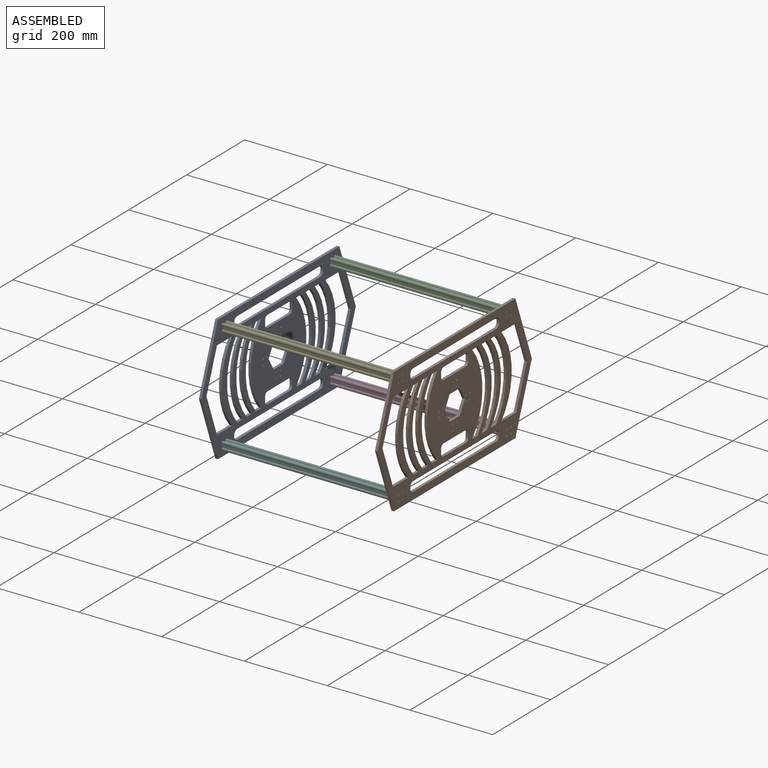
[diagram: assembled view]
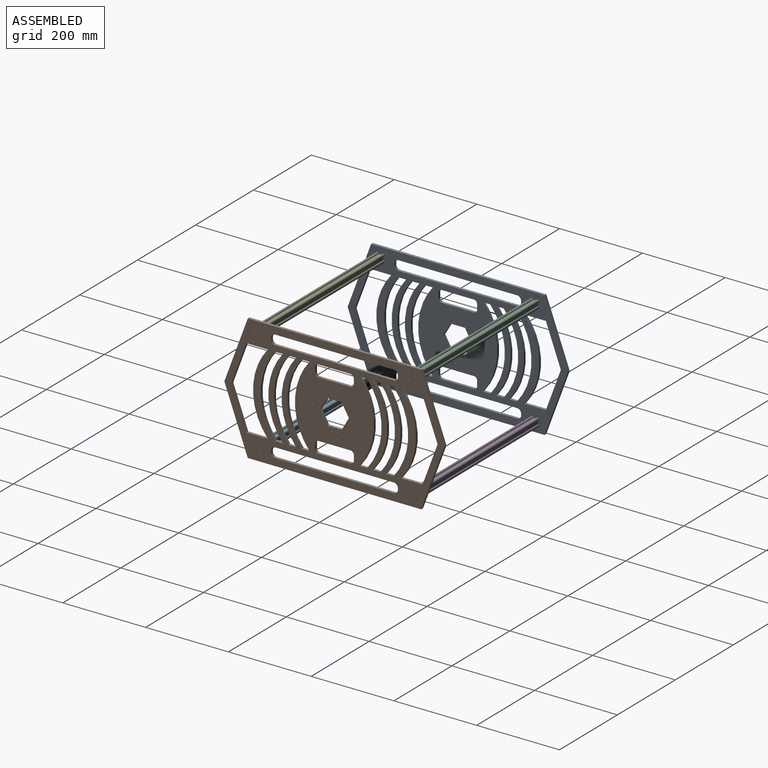
[diagram: assembled view, second angle]
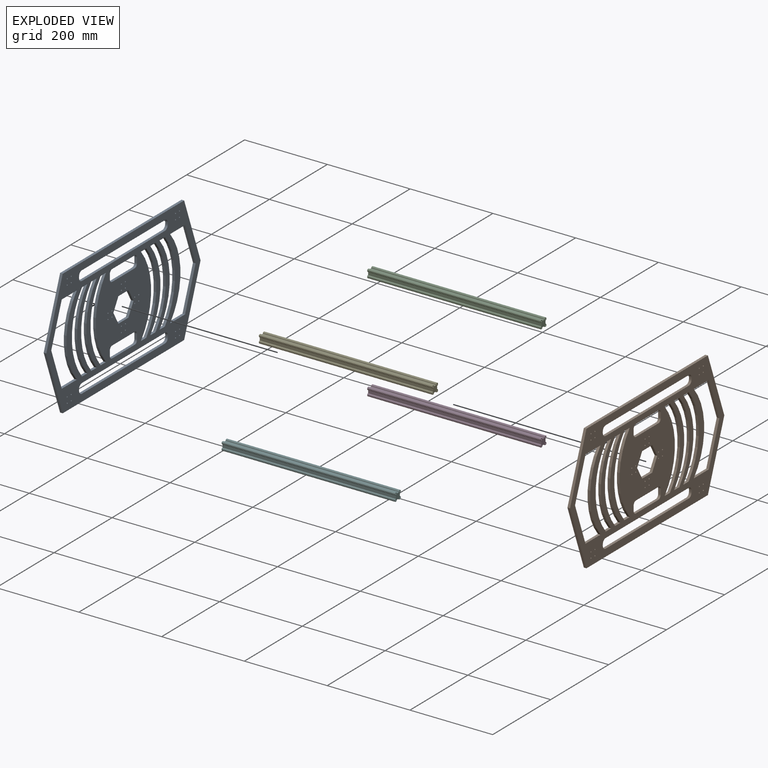
[diagram: exploded view]
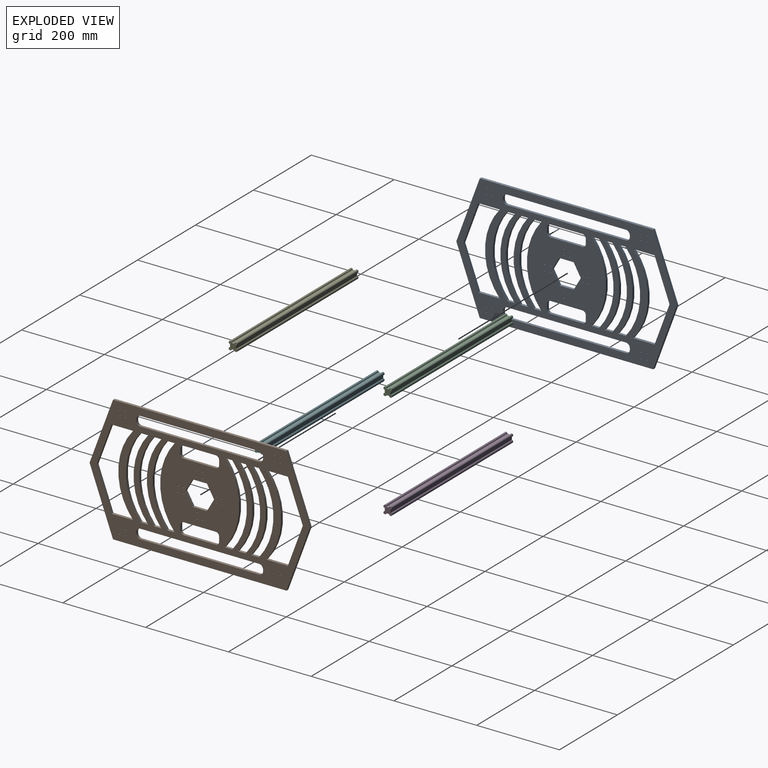
[diagram: exploded view, second angle]
ASSEMBLY  parts=6 mates=5
PART A: 112 faces, bbox 532.3x304.8x6.4 mm
  f0: plane 419.1x6.35mm, normal (0,1,0), area 2661.3mm2, adj f1,f109,f110,f111
  f1: plane 152.4x56.62mm, normal (-0.94,0.35,0), area 1032.4mm2, adj f0,f2,f110,f111
  f2: plane 152.4x56.62mm, normal (-0.94,-0.35,0), area 1032.4mm2, adj f1,f3,f110,f111
  f3: plane 419.1x6.35mm, normal (0,-1,0), area 2661.3mm2, adj f2,f4,f110,f111
  f4: plane 152.4x56.62mm, normal (0.94,-0.35,0), area 1032.4mm2, adj f3,f109,f110,f111
  f5: plane 97.48x36.22mm, normal (0.94,-0.35,0), area 660.3mm2, adj f6,f64,f110,f111
  f6: plane 51.87x6.35mm, normal (0,-1,0), area 329.4mm2, adj f5,f7,f110,f111
  f7: cylinder r=150.67mm len=194.96mm, axis (0,0,-1), area 1346.4mm2, adj f6,f8,f110,f111
  f8: plane 51.87x6.35mm, normal (0,1,0), area 329.4mm2, adj f7,f64,f110,f111
  f9: cylinder r=153.02mm len=194.96mm, axis (0,0,-1), area 1342.2mm2, adj f10,f65,f110,f111
  f10: plane 18.28x6.35mm, normal (0,-1,0), area 116.1mm2, adj f9,f11,f110,f111
  f11: cylinder r=153.02mm len=194.96mm, axis (0,0,-1), area 1342.2mm2, adj f10,f65,f110,f111
  f12: plane 18.28x6.35mm, normal (0,-1,0), area 116.1mm2, adj f13,f66,f110,f111
  f13: cylinder r=153.02mm len=194.96mm, axis (0,0,-1), area 1342.2mm2, adj f12,f14,f110,f111
  f14: plane 18.28x6.35mm, normal (0,1,0), area 116.1mm2, adj f13,f66,f110,f111
  f15: cylinder r=9.9mm len=9.9mm, axis (0,0,-1), area 98.7mm2, adj f16,f67,f110,f111
  f16: plane 286.54x6.35mm, normal (0,-1,0), area 1819.5mm2, adj f15,f17,f110,f111
  f17: cylinder r=9.9mm len=9.9mm, axis (0,0,-1), area 98.7mm2, adj f16,f18,f110,f111
  f18: plane 6.35x3.51mm, normal (-1,0,0), area 22.3mm2, adj f17,f19,f110,f111
  f19: cylinder r=9.9mm len=9.9mm, axis (0,0,-1), area 98.7mm2, adj f18,f20,f110,f111
  f20: plane 286.54x6.35mm, normal (0,1,0), area 1819.5mm2, adj f19,f21,f110,f111
  f21: cylinder r=9.9mm len=9.9mm, axis (0,0,-1), area 98.7mm2, adj f20,f67,f110,f111
  f22: plane 34.76x6.35mm, normal (0,-1,0), area 220.7mm2, adj f23,f68,f110,f111
  f23: plane 30.1x17.38mm, normal (-0.87,-0.5,0), area 220.7mm2, adj f22,f24,f110,f111
  f24: plane 30.1x17.38mm, normal (-0.87,0.5,0), area 220.7mm2, adj f23,f25,f110,f111
  f25: plane 34.76x6.35mm, normal (0,1,0), area 220.7mm2, adj f24,f26,f110,f111
  f26: plane 30.1x17.38mm, normal (0.87,0.5,0), area 220.7mm2, adj f25,f68,f110,f111
  f27: cylinder r=153.02mm len=194.96mm, axis (0,0,-1), area 1342.2mm2, adj f28,f69,f110,f111
  f28: plane 18.28x6.35mm, normal (0,-1,0), area 116.1mm2, adj f27,f29,f110,f111
  f29: cylinder r=153.02mm len=194.96mm, axis (0,0,-1), area 1342.2mm2, adj f28,f69,f110,f111
  f30: cylinder r=153.02mm len=194.96mm, axis (0,0,-1), area 1342.2mm2, adj f31,f70,f110,f111
  f31: plane 18.28x6.35mm, normal (0,-1,0), area 116.1mm2, adj f30,f32,f110,f111
  f32: cylinder r=153.02mm len=194.96mm, axis (0,0,-1), area 1342.2mm2, adj f31,f70,f110,f111
  f33: plane 18.28x6.35mm, normal (0,-1,0), area 116.1mm2, adj f34,f71,f110,f111
  f34: cylinder r=153.02mm len=194.96mm, axis (0,0,-1), area 1342.2mm2, adj f33,f35,f110,f111
  f35: plane 18.28x6.35mm, normal (0,1,0), area 116.1mm2, adj f34,f71,f110,f111
  f36: cylinder r=8.08mm len=8.08mm, axis (0,0,-1), area 80.6mm2, adj f37,f72,f110,f111
  f37: plane 12.02x6.35mm, normal (1,0,0), area 76.3mm2, adj f36,f38,f110,f111
  f38: cylinder r=8.08mm len=8.08mm, axis (0,0,-1), area 80.6mm2, adj f37,f39,f110,f111
  f39: plane 77.38x6.35mm, normal (0,-1,0), area 491.3mm2, adj f38,f40,f110,f111
  f40: cylinder r=8.08mm len=8.08mm, axis (0,0,-1), area 80.6mm2, adj f39,f41,f110,f111
  f41: plane 12.02x6.35mm, normal (-1,0,0), area 76.3mm2, adj f40,f42,f110,f111
  f42: cylinder r=8.08mm len=8.08mm, axis (0,0,-1), area 80.6mm2, adj f41,f72,f110,f111
  f43: cylinder r=8.08mm len=8.08mm, axis (0,0,-1), area 80.6mm2, adj f44,f73,f110,f111
  f44: plane 77.38x6.35mm, normal (0,-1,0), area 491.3mm2, adj f43,f45,f110,f111
  f45: cylinder r=8.08mm len=8.08mm, axis (0,0,-1), area 80.6mm2, adj f44,f46,f110,f111
  f46: plane 12.02x6.35mm, normal (-1,0,0), area 76.3mm2, adj f45,f47,f110,f111
  f47: cylinder r=8.08mm len=8.08mm, axis (0,0,-1), area 80.6mm2, adj f46,f48,f110,f111
  f48: plane 77.38x6.35mm, normal (0,1,0), area 491.3mm2, adj f47,f49,f110,f111
  f49: cylinder r=8.08mm len=8.08mm, axis (0,0,-1), area 80.6mm2, adj f48,f73,f110,f111
  f50: cylinder r=153.02mm len=194.96mm, axis (0,0,-1), area 1342.2mm2, adj f51,f94,f110,f111
  f51: plane 18.28x6.35mm, normal (0,1,0), area 116.1mm2, adj f50,f52,f110,f111
  f52: cylinder r=153.02mm len=194.96mm, axis (0,0,-1), area 1342.2mm2, adj f51,f94,f110,f111
  f53: cylinder r=9.9mm len=9.9mm, axis (0,0,-1), area 98.7mm2, adj f54,f95,f110,f111
  f54: plane 286.54x6.35mm, normal (0,1,0), area 1819.5mm2, adj f53,f55,f110,f111
  f55: cylinder r=9.9mm len=9.9mm, axis (0,0,-1), area 98.7mm2, adj f54,f56,f110,f111
  f56: plane 6.35x3.51mm, normal (1,0,0), area 22.3mm2, adj f55,f57,f110,f111
  f57: cylinder r=9.9mm len=9.9mm, axis (0,0,-1), area 98.7mm2, adj f56,f58,f110,f111
  f58: plane 286.54x6.35mm, normal (0,-1,0), area 1819.5mm2, adj f57,f59,f110,f111
  f59: cylinder r=9.9mm len=9.9mm, axis (0,0,-1), area 98.7mm2, adj f58,f95,f110,f111
  f60: plane 51.87x6.35mm, normal (0,-1,0), area 329.4mm2, adj f61,f96,f110,f111
  f61: plane 97.48x36.22mm, normal (-0.94,-0.35,0), area 660.3mm2, adj f60,f62,f110,f111
  f62: plane 97.48x36.22mm, normal (-0.94,0.35,0), area 660.3mm2, adj f61,f63,f110,f111
  f63: plane 51.87x6.35mm, normal (0,1,0), area 329.4mm2, adj f62,f96,f110,f111
  f64: plane 97.48x36.22mm, normal (0.94,0.35,0), area 660.3mm2, adj f5,f8,f110,f111
  f65: plane 18.28x6.35mm, normal (0,1,0), area 116.1mm2, adj f9,f11,f110,f111
  f66: cylinder r=153.02mm len=194.96mm, axis (0,0,-1), area 1342.2mm2, adj f12,f14,f110,f111
  f67: plane 6.35x3.51mm, normal (1,0,0), area 22.3mm2, adj f15,f21,f110,f111
  f68: plane 30.1x17.38mm, normal (0.87,-0.5,0), area 220.7mm2, adj f22,f26,f110,f111
  f69: plane 18.28x6.35mm, normal (0,1,0), area 116.1mm2, adj f27,f29,f110,f111
  f70: plane 18.28x6.35mm, normal (0,1,0), area 116.1mm2, adj f30,f32,f110,f111
  f71: cylinder r=153.02mm len=194.96mm, axis (0,0,-1), area 1342.2mm2, adj f33,f35,f110,f111
  f72: plane 77.38x6.35mm, normal (0,1,0), area 491.3mm2, adj f36,f42,f110,f111
  f73: plane 12.02x6.35mm, normal (1,0,0), area 76.3mm2, adj f43,f49,f110,f111
  f74: cylinder r=1.5mm len=6.35mm, axis (0,0,-1), area 59.8mm2, adj f110,f111
  f75: cylinder r=1.5mm len=6.35mm, axis (0,0,-1), area 59.8mm2, adj f110,f111
  f76: cylinder r=1.5mm len=6.35mm, axis (0,0,-1), area 59.8mm2, adj f110,f111
  f77: cylinder r=1.5mm len=6.35mm, axis (0,0,-1), area 59.8mm2, adj f110,f111
  f78: cylinder r=1.5mm len=6.35mm, axis (0,0,-1), area 59.8mm2, adj f110,f111
  f79: cylinder r=1.5mm len=6.35mm, axis (0,0,-1), area 59.8mm2, adj f110,f111
  f80: cylinder r=1.5mm len=6.35mm, axis (0,0,-1), area 59.8mm2, adj f110,f111
  f81: cylinder r=1.5mm len=6.35mm, axis (0,0,-1), area 59.8mm2, adj f110,f111
  f82: cylinder r=1.5mm len=6.35mm, axis (0,0,-1), area 59.8mm2, adj f110,f111
  f83: cylinder r=1.5mm len=6.35mm, axis (0,0,-1), area 59.8mm2, adj f110,f111
  f84: cylinder r=1.5mm len=6.35mm, axis (0,0,-1), area 59.8mm2, adj f110,f111
  f85: cylinder r=1.5mm len=6.35mm, axis (0,0,-1), area 59.8mm2, adj f110,f111
  f86: cylinder r=1.5mm len=6.35mm, axis (0,0,-1), area 59.8mm2, adj f110,f111
  f87: cylinder r=1.5mm len=6.35mm, axis (0,0,-1), area 59.8mm2, adj f110,f111
  f88: cylinder r=1.5mm len=6.35mm, axis (0,0,-1), area 59.8mm2, adj f110,f111
  f89: cylinder r=1.5mm len=6.35mm, axis (0,0,-1), area 59.8mm2, adj f110,f111
  f90: cylinder r=1.5mm len=6.35mm, axis (0,0,-1), area 59.8mm2, adj f110,f111
  f91: cylinder r=1.5mm len=6.35mm, axis (0,0,-1), area 59.8mm2, adj f110,f111
  f92: cylinder r=1.5mm len=6.35mm, axis (0,0,-1), area 59.8mm2, adj f110,f111
  f93: cylinder r=1.5mm len=6.35mm, axis (0,0,-1), area 59.8mm2, adj f110,f111
  f94: plane 18.28x6.35mm, normal (0,-1,0), area 116.1mm2, adj f50,f52,f110,f111
  f95: plane 6.35x3.51mm, normal (-1,0,0), area 22.3mm2, adj f53,f59,f110,f111
  f96: cylinder r=150.67mm len=194.96mm, axis (0,0,-1), area 1346.4mm2, adj f60,f63,f110,f111
  f97: cylinder r=1.5mm len=6.35mm, axis (0,0,-1), area 59.8mm2, adj f110,f111
  f98: cylinder r=1.5mm len=6.35mm, axis (0,0,-1), area 59.8mm2, adj f110,f111
  f99: cylinder r=1.5mm len=6.35mm, axis (0,0,-1), area 59.8mm2, adj f110,f111
  f100: cylinder r=1.5mm len=6.35mm, axis (0,0,-1), area 59.8mm2, adj f110,f111
  f101: cylinder r=1.5mm len=6.35mm, axis (0,0,-1), area 59.8mm2, adj f110,f111
  f102: cylinder r=1.5mm len=6.35mm, axis (0,0,-1), area 59.8mm2, adj f110,f111
  f103: cylinder r=1.5mm len=6.35mm, axis (0,0,-1), area 59.8mm2, adj f110,f111
  f104: cylinder r=1.5mm len=6.35mm, axis (0,0,-1), area 59.8mm2, adj f110,f111
  f105: cylinder r=1.5mm len=6.35mm, axis (0,0,-1), area 59.8mm2, adj f110,f111
  f106: cylinder r=1.5mm len=6.35mm, axis (0,0,-1), area 59.8mm2, adj f110,f111
  f107: cylinder r=1.5mm len=6.35mm, axis (0,0,-1), area 59.8mm2, adj f110,f111
  f108: cylinder r=1.5mm len=6.35mm, axis (0,0,-1), area 59.8mm2, adj f110,f111
  f109: plane 152.4x56.62mm, normal (0.94,0.35,0), area 1032.4mm2, adj f0,f4,f110,f111
  f110: plane 532.34x304.8mm, normal (0,0,1), area 83239.9mm2, adj f0,f1,f2,f3,f4,f5,f6,f7
  f111: plane 532.34x304.8mm, normal (0,0,-1), area 83239.9mm2, adj f0,f1,f2,f3,f4,f5,f6,f7
PART B: same geometry as A
PART C: 38 faces, bbox 19.8x19.8x419.1 mm
  f0: plane 419.1x1.52mm, normal (0,-1,0), area 635.2mm2, adj f1,f24,f25,f30
  f1: plane 419.1x7.77mm, normal (-1,0,0), area 3255.8mm2, adj f0,f2,f24,f25
  f2: plane 419.1x1.52mm, normal (0,1,0), area 635.2mm2, adj f1,f24,f25,f29
  f3: plane 419.1x3.03mm, normal (-1,0,0), area 1270.5mm2, adj f24,f25,f29,f35
  f4: plane 419.1x3.03mm, normal (0,-1,0), area 1270.5mm2, adj f24,f25,f28,f35
  f5: plane 419.1x1.52mm, normal (1,0,0), area 635.2mm2, adj f6,f24,f25,f28
  f6: plane 419.1x7.77mm, normal (0,-1,0), area 3255.8mm2, adj f5,f7,f24,f25
  f7: plane 419.1x1.52mm, normal (-1,0,0), area 635.2mm2, adj f6,f24,f25,f26
  f8: plane 419.1x3.03mm, normal (0,-1,0), area 1270.5mm2, adj f24,f25,f26,f36
  f9: plane 419.1x3.03mm, normal (1,0,0), area 1270.5mm2, adj f24,f25,f27,f36
  f10: plane 419.1x1.52mm, normal (0,1,0), area 635.2mm2, adj f11,f24,f25,f27
  f11: plane 419.1x7.77mm, normal (1,0,0), area 3255.8mm2, adj f10,f12,f24,f25
  f12: plane 419.1x1.52mm, normal (0,-1,0), area 635.2mm2, adj f11,f24,f25,f33
  f13: plane 419.1x3.03mm, normal (1,0,0), area 1270.5mm2, adj f24,f25,f33,f37
  f14: plane 419.1x3.03mm, normal (0,1,0), area 1270.5mm2, adj f24,f25,f32,f37
  f15: plane 419.1x1.52mm, normal (-1,0,0), area 635.2mm2, adj f16,f24,f25,f32
  f16: plane 419.1x7.77mm, normal (0,1,0), area 3255.8mm2, adj f15,f17,f24,f25
  f17: plane 419.1x1.52mm, normal (1,0,0), area 635.2mm2, adj f16,f24,f25,f31
  f18: plane 419.1x3.03mm, normal (0,1,0), area 1270.5mm2, adj f24,f25,f31,f34
  f19: cylinder r=1.5mm len=419.1mm, axis (0,0,-1), area 3949.9mm2, adj f24,f25
  f20: cylinder r=1.5mm len=419.1mm, axis (0,0,-1), area 3949.9mm2, adj f24,f25
  f21: cylinder r=1.5mm len=419.1mm, axis (0,0,-1), area 3949.9mm2, adj f24,f25
  f22: plane 419.1x3.03mm, normal (-1,0,0), area 1270.5mm2, adj f24,f25,f30,f34
  f23: cylinder r=1.5mm len=419.1mm, axis (0,0,-1), area 3949.9mm2, adj f24,f25
  f24: plane 19.83x19.83mm, normal (0,0,1), area 257.8mm2, adj f0,f1,f2,f3,f4,f5,f6,f7
  f25: plane 19.83x19.83mm, normal (0,0,-1), area 257.8mm2, adj f0,f1,f2,f3,f4,f5,f6,f7
  f26: plane 419.1x1.5mm, normal (-0.71,-0.71,0), area 889mm2, adj f7,f8,f24,f25
  f27: plane 419.1x1.5mm, normal (0.71,0.71,0), area 889mm2, adj f9,f10,f24,f25
  f28: plane 419.1x1.5mm, normal (0.71,-0.71,0), area 889mm2, adj f4,f5,f24,f25
  f29: plane 419.1x1.5mm, normal (-0.71,0.71,0), area 889mm2, adj f2,f3,f24,f25
  f30: plane 419.1x1.5mm, normal (-0.71,-0.71,0), area 889mm2, adj f0,f22,f24,f25
  f31: plane 419.1x1.5mm, normal (0.71,0.71,0), area 889mm2, adj f17,f18,f24,f25
  f32: plane 419.1x1.5mm, normal (-0.71,0.71,0), area 889mm2, adj f14,f15,f24,f25
  f33: plane 419.1x1.5mm, normal (0.71,-0.71,0), area 889mm2, adj f12,f13,f24,f25
  f34: plane 419.1x1.5mm, normal (-0.71,0.71,0), area 889mm2, adj f18,f22,f24,f25
  f35: plane 419.1x1.5mm, normal (-0.71,-0.71,0), area 889mm2, adj f3,f4,f24,f25
  f36: plane 419.1x1.5mm, normal (0.71,-0.71,0), area 889mm2, adj f8,f9,f24,f25
  f37: plane 419.1x1.5mm, normal (0.71,0.71,0), area 889mm2, adj f13,f14,f24,f25
PART D: same geometry as C
PART E: same geometry as C
PART F: same geometry as C
PLACE A rot(axis=(0.58,0.58,0.58),120deg) t=(-177.66,-65.82,-85.01)mm
PLACE B rot(axis=(0.58,0.58,0.58),120deg) t=(247.79,-65.82,-85.01)mm
PLACE C rot(axis=(0.58,0.58,0.58),120deg) t=(-171.31,114.19,37.12)mm
PLACE D rot(axis=(0.58,0.58,0.58),120deg) t=(-171.31,114.19,-220.94)mm
PLACE E rot(axis=(0.58,0.58,0.58),120deg) t=(-171.31,-259.63,37.12)mm
PLACE F rot(axis=(0.58,0.58,0.58),120deg) t=(-171.31,-259.63,-220.94)mm
MATE fastened B.f76 <-> E.f21  axis (-1,0,0) through (247.79,-259.63,50.92)mm
MATE fastened D.f21 <-> A.f80  axis (-1,0,0) through (-171.31,114.19,-207.14)mm
MATE fastened F.f19 <-> A.f91  axis (-1,0,0) through (-171.31,-245.83,-207.14)mm
MATE fastened E.f21 <-> A.f76  axis (-1,0,0) through (-171.31,-259.63,50.92)mm
MATE fastened C.f19 <-> A.f79  axis (-1,0,0) through (-171.31,127.99,50.92)mm
